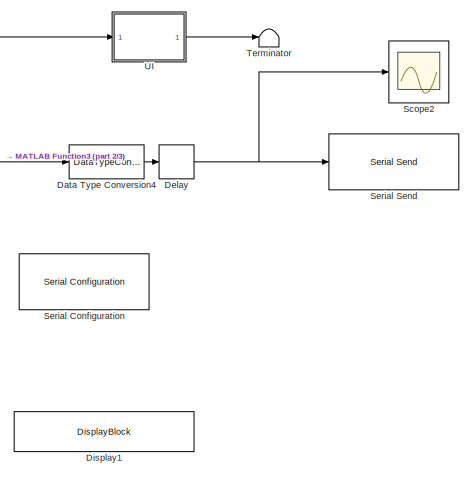
[diagram: root canvas - part 1/3, top right region]
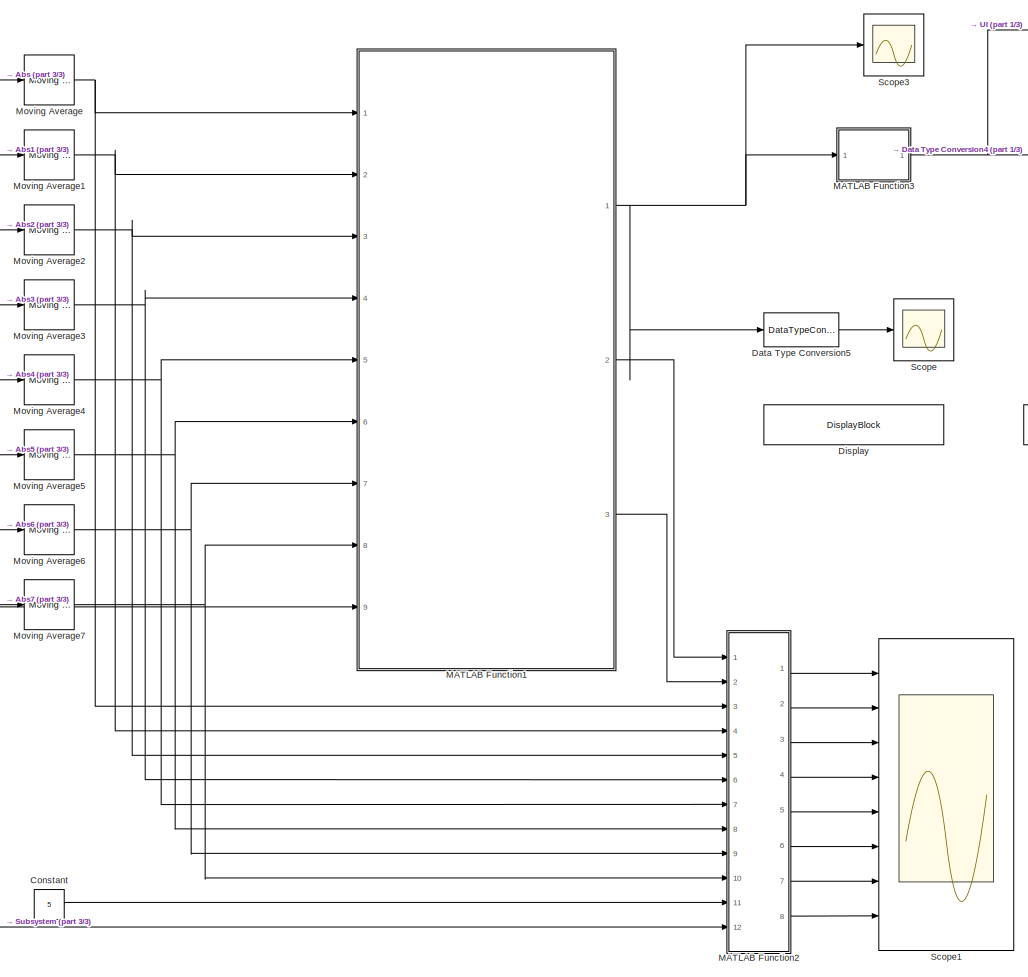
[diagram: root canvas - part 2/3, center side, full height]
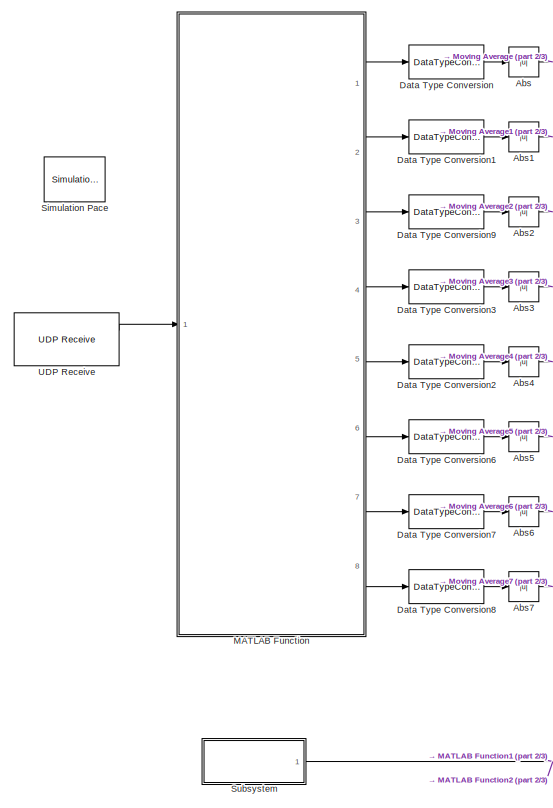
[diagram: root canvas - part 3/3, left side, full height]
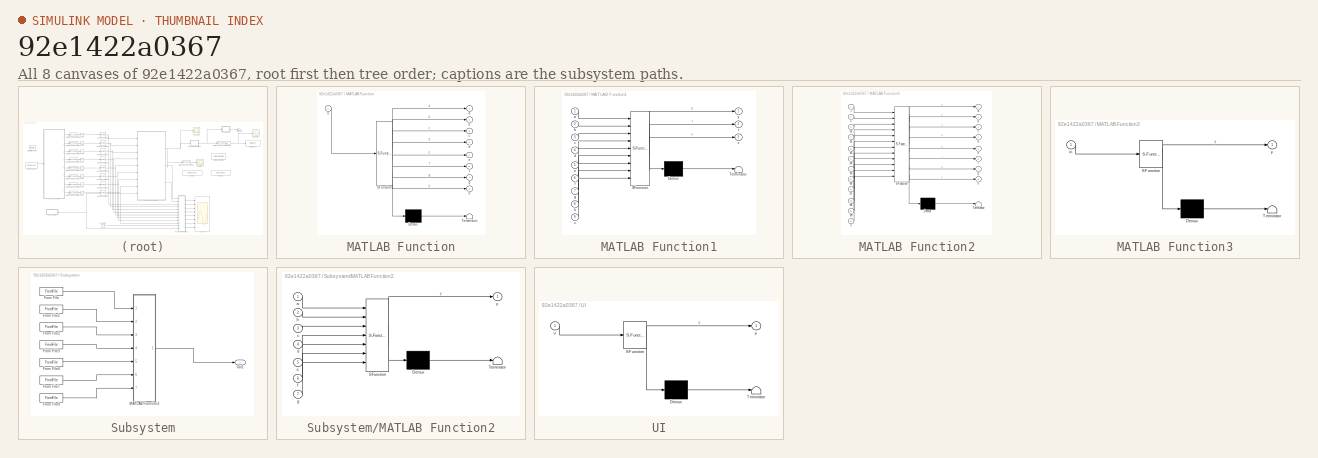
[diagram: thumbnail index - all 8 canvases of the model, root first then tree order]
MODEL slx_92e1422a0367
KIND model
CONFIG AbsTol = auto
CONFIG EnableMultiTasking = off
CONFIG FixedStep = auto
CONFIG MaxStep = auto
CONFIG MinStep = auto
CONFIG RelTol = 1e-3
CONFIG SampleTimeConstraint = Unconstrained
CONFIG Solver = VariableStepAuto
CONFIG SolverName = VariableStepAuto
CONFIG StartTime = 0.0
CONFIG StopTime = inf
BLOCK [Abs] Abs
  SaturateOnIntegerOverflow = off
BLOCK [Abs] Abs1
  SaturateOnIntegerOverflow = off
BLOCK [Abs] Abs2
  SaturateOnIntegerOverflow = off
BLOCK [Abs] Abs3
  SaturateOnIntegerOverflow = off
BLOCK [Abs] Abs4
  SaturateOnIntegerOverflow = off
BLOCK [Abs] Abs5
  SaturateOnIntegerOverflow = off
BLOCK [Abs] Abs6
  SaturateOnIntegerOverflow = off
BLOCK [Abs] Abs7
  SaturateOnIntegerOverflow = off
BLOCK [Constant] Constant
  Value = 5
BLOCK [DataTypeConversion] Data Type Conversion
  OutDataTypeStr = double
  RndMeth = Floor
  SaturateOnIntegerOverflow = off
BLOCK [DataTypeConversion] Data Type Conversion1
  OutDataTypeStr = double
  RndMeth = Floor
  SaturateOnIntegerOverflow = off
BLOCK [DataTypeConversion] Data Type Conversion2
  OutDataTypeStr = double
  RndMeth = Floor
  SaturateOnIntegerOverflow = off
BLOCK [DataTypeConversion] Data Type Conversion3
  OutDataTypeStr = double
  RndMeth = Floor
  SaturateOnIntegerOverflow = off
BLOCK [DataTypeConversion] Data Type Conversion4
  OutDataTypeStr = uint8
  RndMeth = Floor
  SaturateOnIntegerOverflow = off
BLOCK [DataTypeConversion] Data Type Conversion5
  OutDataTypeStr = double
  RndMeth = Floor
  SaturateOnIntegerOverflow = off
BLOCK [DataTypeConversion] Data Type Conversion6
  OutDataTypeStr = double
  RndMeth = Floor
  SaturateOnIntegerOverflow = off
BLOCK [DataTypeConversion] Data Type Conversion7
  OutDataTypeStr = double
  RndMeth = Floor
  SaturateOnIntegerOverflow = off
BLOCK [DataTypeConversion] Data Type Conversion8
  OutDataTypeStr = double
  RndMeth = Floor
  SaturateOnIntegerOverflow = off
BLOCK [DataTypeConversion] Data Type Conversion9
  OutDataTypeStr = double
  RndMeth = Floor
  SaturateOnIntegerOverflow = off
BLOCK [Delay] Delay
  DelayLength = 1
  InitialCondition = 0
  InputPortMap = u0
  Ports = [1, 1]
BLOCK [DisplayBlock] Display
  LabelPosition = Hide
  WebBlockId = 99
BLOCK [DisplayBlock] Display1
  LabelPosition = Hide
  WebBlockId = 154
BLOCK [SubSystem] MATLAB Function
  ErrorFcn = Stateflow.Translate.translate
  PermitHierarchicalResolution = ExplicitOnly
  Ports = [1, 8]
  RequestExecContextInheritance = off
  SFBlockType = MATLAB Function
  TreatAsAtomicUnit = on
BLOCK [Demux] MATLAB Function/ Demux 
  Outputs = 1
  Ports = [1, 1]
BLOCK [S-Function] MATLAB Function/ SFunction 
  EnableBusSupport = on
  FunctionName = sf_sfun
  PortCounts = [1 9]
  Ports = [1, 9]
  SFcnIsStateOwnerBlock = off
  SFunctionDeploymentMode = off
  Tag = Stateflow S-Function MyoGesture6CH_UI 2
BLOCK [Terminator] MATLAB Function/ Terminator 
BLOCK [Outport] MATLAB Function/a
  IconDisplay = Port number
BLOCK [Outport] MATLAB Function/b
  IconDisplay = Port number
  Port = 2
BLOCK [Outport] MATLAB Function/c
  IconDisplay = Port number
  Port = 3
BLOCK [Outport] MATLAB Function/d
  IconDisplay = Port number
  Port = 4
BLOCK [Outport] MATLAB Function/e
  IconDisplay = Port number
  Port = 5
BLOCK [Outport] MATLAB Function/f
  IconDisplay = Port number
  Port = 6
BLOCK [Outport] MATLAB Function/g
  IconDisplay = Port number
  Port = 7
BLOCK [Outport] MATLAB Function/h
  IconDisplay = Port number
  Port = 8
BLOCK [Inport] MATLAB Function/u
  IconDisplay = Port number
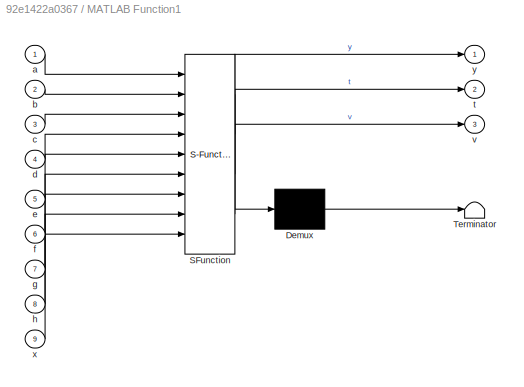
BLOCK [SubSystem] MATLAB Function1
  ErrorFcn = Stateflow.Translate.translate
  PermitHierarchicalResolution = ExplicitOnly
  Ports = [9, 3]
  RequestExecContextInheritance = off
  SFBlockType = MATLAB Function
  TreatAsAtomicUnit = on
BLOCK [Demux] MATLAB Function1/ Demux 
  Outputs = 1
  Ports = [1, 1]
BLOCK [S-Function] MATLAB Function1/ SFunction 
  EnableBusSupport = on
  FunctionName = sf_sfun
  PortCounts = [9 4]
  Ports = [9, 4]
  SFcnIsStateOwnerBlock = off
  SFunctionDeploymentMode = off
  Tag = Stateflow S-Function MyoGesture6CH_UI 1
BLOCK [Terminator] MATLAB Function1/ Terminator 
BLOCK [Inport] MATLAB Function1/a
  IconDisplay = Port number
BLOCK [Inport] MATLAB Function1/b
  IconDisplay = Port number
  Port = 2
BLOCK [Inport] MATLAB Function1/c
  IconDisplay = Port number
  Port = 3
BLOCK [Inport] MATLAB Function1/d
  IconDisplay = Port number
  Port = 4
BLOCK [Inport] MATLAB Function1/e
  IconDisplay = Port number
  Port = 5
BLOCK [Inport] MATLAB Function1/f
  IconDisplay = Port number
  Port = 6
BLOCK [Inport] MATLAB Function1/g
  IconDisplay = Port number
  Port = 7
BLOCK [Inport] MATLAB Function1/h
  IconDisplay = Port number
  Port = 8
BLOCK [Outport] MATLAB Function1/t
  IconDisplay = Port number
  Port = 2
BLOCK [Outport] MATLAB Function1/v
  IconDisplay = Port number
  Port = 3
BLOCK [Inport] MATLAB Function1/x
  IconDisplay = Port number
  Port = 9
BLOCK [Outport] MATLAB Function1/y
  IconDisplay = Port number
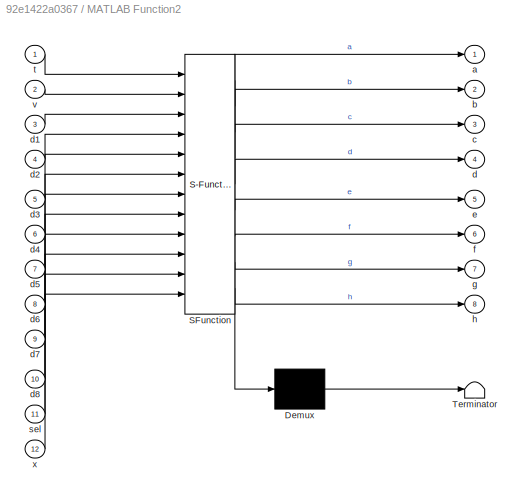
BLOCK [SubSystem] MATLAB Function2
  ErrorFcn = Stateflow.Translate.translate
  PermitHierarchicalResolution = ExplicitOnly
  Ports = [12, 8]
  RequestExecContextInheritance = off
  SFBlockType = MATLAB Function
  TreatAsAtomicUnit = on
BLOCK [Demux] MATLAB Function2/ Demux 
  Outputs = 1
  Ports = [1, 1]
BLOCK [S-Function] MATLAB Function2/ SFunction 
  EnableBusSupport = on
  FunctionName = sf_sfun
  PortCounts = [12 9]
  Ports = [12, 9]
  SFcnIsStateOwnerBlock = off
  SFunctionDeploymentMode = off
  Tag = Stateflow S-Function MyoGesture6CH_UI 3
BLOCK [Terminator] MATLAB Function2/ Terminator 
BLOCK [Outport] MATLAB Function2/a
  IconDisplay = Port number
BLOCK [Outport] MATLAB Function2/b
  IconDisplay = Port number
  Port = 2
BLOCK [Outport] MATLAB Function2/c
  IconDisplay = Port number
  Port = 3
BLOCK [Outport] MATLAB Function2/d
  IconDisplay = Port number
  Port = 4
BLOCK [Inport] MATLAB Function2/d1
  IconDisplay = Port number
  Port = 3
BLOCK [Inport] MATLAB Function2/d2
  IconDisplay = Port number
  Port = 4
BLOCK [Inport] MATLAB Function2/d3
  IconDisplay = Port number
  Port = 5
BLOCK [Inport] MATLAB Function2/d4
  IconDisplay = Port number
  Port = 6
BLOCK [Inport] MATLAB Function2/d5
  IconDisplay = Port number
  Port = 7
BLOCK [Inport] MATLAB Function2/d6
  IconDisplay = Port number
  Port = 8
BLOCK [Inport] MATLAB Function2/d7
  IconDisplay = Port number
  Port = 9
BLOCK [Inport] MATLAB Function2/d8
  IconDisplay = Port number
  Port = 10
BLOCK [Outport] MATLAB Function2/e
  IconDisplay = Port number
  Port = 5
BLOCK [Outport] MATLAB Function2/f
  IconDisplay = Port number
  Port = 6
BLOCK [Outport] MATLAB Function2/g
  IconDisplay = Port number
  Port = 7
BLOCK [Outport] MATLAB Function2/h
  IconDisplay = Port number
  Port = 8
BLOCK [Inport] MATLAB Function2/sel
  IconDisplay = Port number
  Port = 11
BLOCK [Inport] MATLAB Function2/t
  IconDisplay = Port number
BLOCK [Inport] MATLAB Function2/v
  IconDisplay = Port number
  Port = 2
BLOCK [Inport] MATLAB Function2/x
  IconDisplay = Port number
  Port = 12
BLOCK [SubSystem] MATLAB Function3
  ErrorFcn = Stateflow.Translate.translate
  PermitHierarchicalResolution = ExplicitOnly
  Ports = [1, 1]
  RequestExecContextInheritance = off
  SFBlockType = MATLAB Function
  TreatAsAtomicUnit = on
BLOCK [Demux] MATLAB Function3/ Demux 
  Outputs = 1
  Ports = [1, 1]
BLOCK [S-Function] MATLAB Function3/ SFunction 
  EnableBusSupport = on
  FunctionName = sf_sfun
  PortCounts = [1 2]
  Ports = [1, 2]
  SFcnIsStateOwnerBlock = off
  SFunctionDeploymentMode = off
  Tag = Stateflow S-Function MyoGesture6CH_UI 5
BLOCK [Terminator] MATLAB Function3/ Terminator 
BLOCK [Inport] MATLAB Function3/in
  IconDisplay = Port number
BLOCK [Outport] MATLAB Function3/y
  IconDisplay = Port number
BLOCK [Reference] Moving Average  REF=dspstat3/Moving
Average
  Ports = [1, 1]
  SourceBlock = dspstat3/Moving\nAverage
  SourceProductBaseCode = DS
  SourceProductName = DSP System Toolbox
  SourceType = dsp.simulink.MovingAverage
BLOCK [Reference] Moving Average1  REF=dspstat3/Moving
Average
  Ports = [1, 1]
  SourceBlock = dspstat3/Moving\nAverage
  SourceProductBaseCode = DS
  SourceProductName = DSP System Toolbox
  SourceType = dsp.simulink.MovingAverage
BLOCK [Reference] Moving Average2  REF=dspstat3/Moving
Average
  Ports = [1, 1]
  SourceBlock = dspstat3/Moving\nAverage
  SourceProductBaseCode = DS
  SourceProductName = DSP System Toolbox
  SourceType = dsp.simulink.MovingAverage
BLOCK [Reference] Moving Average3  REF=dspstat3/Moving
Average
  Ports = [1, 1]
  SourceBlock = dspstat3/Moving\nAverage
  SourceProductBaseCode = DS
  SourceProductName = DSP System Toolbox
  SourceType = dsp.simulink.MovingAverage
BLOCK [Reference] Moving Average4  REF=dspstat3/Moving
Average
  Ports = [1, 1]
  SourceBlock = dspstat3/Moving\nAverage
  SourceProductBaseCode = DS
  SourceProductName = DSP System Toolbox
  SourceType = dsp.simulink.MovingAverage
BLOCK [Reference] Moving Average5  REF=dspstat3/Moving
Average
  Ports = [1, 1]
  SourceBlock = dspstat3/Moving\nAverage
  SourceProductBaseCode = DS
  SourceProductName = DSP System Toolbox
  SourceType = dsp.simulink.MovingAverage
BLOCK [Reference] Moving Average6  REF=dspstat3/Moving
Average
  Ports = [1, 1]
  SourceBlock = dspstat3/Moving\nAverage
  SourceProductBaseCode = DS
  SourceProductName = DSP System Toolbox
  SourceType = dsp.simulink.MovingAverage
BLOCK [Reference] Moving Average7  REF=dspstat3/Moving
Average
  Ports = [1, 1]
  SourceBlock = dspstat3/Moving\nAverage
  SourceProductBaseCode = DS
  SourceProductName = DSP System Toolbox
  SourceType = dsp.simulink.MovingAverage
BLOCK [Scope] Scope
  Floating = off
  NumInputPorts = 1
  Ports = [1]
  ScopeSpecificationString = Simulink.scopes.TimeScopeBlockCfg('CurrentConfiguration', extmgr.ConfigurationSet(extmgr.Configuration('Core','General UI',true),extmgr.Configuration('Core','Source UI',true),extmgr.Configuration('Sources','WiredSimulink',true,'DataLoggingVariableName','ScopeData1'),extmgr.Configuration('Visuals','Time Domain',true,'SerializedDisplays',{struct('MinYLimReal','-0.75','MaxYLimReal','6.75','YLabelReal...<+1434ch>
BLOCK [Scope] Scope1
  Floating = off
  NumInputPorts = 8
  Ports = [8]
  ScopeSpecificationString = Simulink.scopes.TimeScopeBlockCfg('CurrentConfiguration', extmgr.ConfigurationSet(extmgr.Configuration('Core','General UI',true),extmgr.Configuration('Core','Source UI',true),extmgr.Configuration('Sources','WiredSimulink',true,'DataLoggingVariableName','ScopeData1'),extmgr.Configuration('Visuals','Time Domain',true,'SerializedDisplays',{struct('MinYLimReal','0','MaxYLimReal','100','YLabelReal','',...<+7550ch>
BLOCK [Scope] Scope2
  Floating = off
  NumInputPorts = 1
  Ports = [1]
  ScopeSpecificationString = Simulink.scopes.TimeScopeBlockCfg('CurrentConfiguration', extmgr.ConfigurationSet(extmgr.Configuration('Core','General UI',true),extmgr.Configuration('Core','Source UI',true),extmgr.Configuration('Sources','WiredSimulink',true,'DataLoggingVariableName','ScopeData1'),extmgr.Configuration('Visuals','Time Domain',true,'SerializedDisplays',{struct('MinYLimReal','-1.00000','MaxYLimReal','1.00000','YLab...<+1422ch>
BLOCK [Scope] Scope3
  Floating = off
  NumInputPorts = 1
  Ports = [1]
  ScopeSpecificationString = Simulink.scopes.TimeScopeBlockCfg('CurrentConfiguration', extmgr.ConfigurationSet(extmgr.Configuration('Core','General UI',true),extmgr.Configuration('Core','Source UI',true),extmgr.Configuration('Sources','WiredSimulink',true,'DataLoggingVariableName','ScopeData1'),extmgr.Configuration('Visuals','Time Domain',true,'SerializedDisplays',{struct('MinYLimReal','-0.75','MaxYLimReal','6.75','YLabelReal...<+1417ch>
BLOCK [Reference] Serial Configuration  REF=instrumentlib/Serial Configuration
  Ports = []
  Priority = -200000
  SourceBlock = instrumentlib/Serial Configuration
  SourceProductBaseCode = IC
  SourceProductName = Instrument Control Toolbox
  SourceType = Serial Configuration
BLOCK [Reference] Serial Send  REF=instrumentlib/Serial Send
  Ports = [1]
  SourceBlock = instrumentlib/Serial Send
  SourceProductBaseCode = IC
  SourceProductName = Instrument Control Toolbox
  SourceType = Serial Send
BLOCK [Reference] Simulation Pace  REF=aerolibanimutils/Simulation Pace
  AttributesFormatString = %<SleepMode>\n%<SimulationPace> sec/sec
  Ports = []
  SourceBlock = aerolibanimutils/Simulation Pace
  SourceProductBaseCode = AE
  SourceProductName = Aerospace Blockset
  SourceType = Simulation Pace
BLOCK [SubSystem] Subsystem
  Ports = [0, 1]
  RequestExecContextInheritance = off
BLOCK [FromFile] Subsystem/From File
  ExtrapolationAfterLastDataPoint = Hold last value
  ExtrapolationBeforeFirstDataPoint = Hold first value
  FileName = fist.mat
  InterpolationWithinTimeRange = Zero order hold
  OutDataTypeStr = double
  SampleTime = 0
  ZeroCross = on
BLOCK [FromFile] Subsystem/From File1
  ExtrapolationAfterLastDataPoint = Hold last value
  ExtrapolationBeforeFirstDataPoint = Hold first value
  FileName = spread.mat
  InterpolationWithinTimeRange = Zero order hold
  OutDataTypeStr = double
  SampleTime = 0
  ZeroCross = on
BLOCK [FromFile] Subsystem/From File2
  ExtrapolationAfterLastDataPoint = Hold last value
  ExtrapolationBeforeFirstDataPoint = Hold first value
  FileName = left.mat
  InterpolationWithinTimeRange = Zero order hold
  OutDataTypeStr = double
  SampleTime = 0
  ZeroCross = on
BLOCK [FromFile] Subsystem/From File3
  ExtrapolationAfterLastDataPoint = Hold last value
  ExtrapolationBeforeFirstDataPoint = Hold first value
  FileName = right.mat
  InterpolationWithinTimeRange = Zero order hold
  OutDataTypeStr = double
  SampleTime = 0
  ZeroCross = on
BLOCK [FromFile] Subsystem/From File4
  ExtrapolationAfterLastDataPoint = Hold last value
  ExtrapolationBeforeFirstDataPoint = Hold first value
  FileName = rest.mat
  InterpolationWithinTimeRange = Zero order hold
  OutDataTypeStr = double
  SampleTime = 0
  ZeroCross = on
BLOCK [FromFile] Subsystem/From File6
  ExtrapolationAfterLastDataPoint = Hold last value
  ExtrapolationBeforeFirstDataPoint = Hold first value
  FileName = banana.mat
  InterpolationWithinTimeRange = Zero order hold
  OutDataTypeStr = double
  SampleTime = 0
  ZeroCross = on
BLOCK [FromFile] Subsystem/From File7
  ExtrapolationAfterLastDataPoint = Hold last value
  ExtrapolationBeforeFirstDataPoint = Hold first value
  FileName = fish.mat
  InterpolationWithinTimeRange = Zero order hold
  OutDataTypeStr = double
  SampleTime = 0
  ZeroCross = on
BLOCK [SubSystem] Subsystem/MATLAB Function2
  ErrorFcn = Stateflow.Translate.translate
  PermitHierarchicalResolution = ExplicitOnly
  Ports = [7, 1]
  RequestExecContextInheritance = off
  SFBlockType = MATLAB Function
  TreatAsAtomicUnit = on
BLOCK [Demux] Subsystem/MATLAB Function2/ Demux 
  Outputs = 1
  Ports = [1, 1]
BLOCK [S-Function] Subsystem/MATLAB Function2/ SFunction 
  EnableBusSupport = on
  FunctionName = sf_sfun
  PortCounts = [7 2]
  Ports = [7, 2]
  SFcnIsStateOwnerBlock = off
  SFunctionDeploymentMode = off
  Tag = Stateflow S-Function MyoGesture6CH_UI 4
BLOCK [Terminator] Subsystem/MATLAB Function2/ Terminator 
BLOCK [Inport] Subsystem/MATLAB Function2/a
  IconDisplay = Port number
BLOCK [Inport] Subsystem/MATLAB Function2/b
  IconDisplay = Port number
  Port = 2
BLOCK [Inport] Subsystem/MATLAB Function2/c
  IconDisplay = Port number
  Port = 3
BLOCK [Inport] Subsystem/MATLAB Function2/d
  IconDisplay = Port number
  Port = 4
BLOCK [Inport] Subsystem/MATLAB Function2/e
  IconDisplay = Port number
  Port = 5
BLOCK [Inport] Subsystem/MATLAB Function2/f
  IconDisplay = Port number
  Port = 6
BLOCK [Inport] Subsystem/MATLAB Function2/g
  IconDisplay = Port number
  Port = 7
BLOCK [Outport] Subsystem/MATLAB Function2/y
  IconDisplay = Port number
BLOCK [Outport] Subsystem/Out1
  IconDisplay = Port number
BLOCK [Terminator] Terminator
BLOCK [Reference] UDP Receive  REF=dspnetwork/UDP Receive
  Ports = [0, 2]
  SourceBlock = dspnetwork/UDP Receive
  SourceProductBaseCode = DS
  SourceProductName = DSP System Toolbox
  SourceType = UDP Receive
BLOCK [SubSystem] UI
  ErrorFcn = Stateflow.Translate.translate
  PermitHierarchicalResolution = ExplicitOnly
  Ports = [1, 1]
  RequestExecContextInheritance = off
  SFBlockType = MATLAB Function
  Tag = rand
  TreatAsAtomicUnit = on
BLOCK [Demux] UI/ Demux 
  Outputs = 1
  Ports = [1, 1]
BLOCK [S-Function] UI/ SFunction 
  EnableBusSupport = on
  FunctionName = sf_sfun
  PortCounts = [1 2]
  Ports = [1, 2]
  SFcnIsStateOwnerBlock = off
  SFunctionDeploymentMode = off
  Tag = Stateflow S-Function MyoGesture6CH_UI 6
BLOCK [Terminator] UI/ Terminator 
BLOCK [Inport] UI/u
  IconDisplay = Port number
BLOCK [Outport] UI/y
  IconDisplay = Port number
LINE Abs1:1 -> Moving Average1:1
LINE Abs2:1 -> Moving Average2:1
LINE Abs3:1 -> Moving Average3:1
LINE Abs4:1 -> Moving Average4:1
LINE Abs5:1 -> Moving Average5:1
LINE Abs6:1 -> Moving Average6:1
LINE Abs7:1 -> Moving Average7:1
LINE Abs:1 -> Moving Average:1
LINE Constant:1 -> MATLAB Function2:11
LINE Data Type Conversion1:1 -> Abs1:1
LINE Data Type Conversion2:1 -> Abs4:1
LINE Data Type Conversion3:1 -> Abs3:1
LINE Data Type Conversion4:1 -> Delay:1
LINE Data Type Conversion5:1 -> Scope:1
LINE Data Type Conversion6:1 -> Abs5:1
LINE Data Type Conversion7:1 -> Abs6:1
LINE Data Type Conversion8:1 -> Abs7:1
LINE Data Type Conversion9:1 -> Abs2:1
LINE Data Type Conversion:1 -> Abs:1
NET Delay:1 -> Scope2:1, Serial Send:1
NET MATLAB Function1:1 -> Data Type Conversion5:1, MATLAB Function3:1, Scope3:1
LINE MATLAB Function1:2 -> MATLAB Function2:1
LINE MATLAB Function1:3 -> MATLAB Function2:2
LINE MATLAB Function2:1 -> Scope1:1
LINE MATLAB Function2:2 -> Scope1:2
LINE MATLAB Function2:3 -> Scope1:3
LINE MATLAB Function2:4 -> Scope1:4
LINE MATLAB Function2:5 -> Scope1:5
LINE MATLAB Function2:6 -> Scope1:6
LINE MATLAB Function2:7 -> Scope1:7
LINE MATLAB Function2:8 -> Scope1:8
NET MATLAB Function3:1 -> Data Type Conversion4:1, UI:1
LINE MATLAB Function:1 -> Data Type Conversion:1
LINE MATLAB Function:2 -> Data Type Conversion1:1
LINE MATLAB Function:3 -> Data Type Conversion9:1
LINE MATLAB Function:4 -> Data Type Conversion3:1
LINE MATLAB Function:5 -> Data Type Conversion2:1
LINE MATLAB Function:6 -> Data Type Conversion6:1
LINE MATLAB Function:7 -> Data Type Conversion7:1
LINE MATLAB Function:8 -> Data Type Conversion8:1
NET Moving Average1:1 -> MATLAB Function1:2, MATLAB Function2:4
NET Moving Average2:1 -> MATLAB Function1:3, MATLAB Function2:5
NET Moving Average3:1 -> MATLAB Function1:4, MATLAB Function2:6
NET Moving Average4:1 -> MATLAB Function1:5, MATLAB Function2:7
NET Moving Average5:1 -> MATLAB Function1:6, MATLAB Function2:8
NET Moving Average6:1 -> MATLAB Function1:7, MATLAB Function2:9
NET Moving Average7:1 -> MATLAB Function1:8, MATLAB Function2:10
NET Moving Average:1 -> MATLAB Function1:1, MATLAB Function2:3
LINE Subsystem/From File1:1 -> Subsystem/MATLAB Function2:2
LINE Subsystem/From File2:1 -> Subsystem/MATLAB Function2:3
LINE Subsystem/From File3:1 -> Subsystem/MATLAB Function2:4
LINE Subsystem/From File4:1 -> Subsystem/MATLAB Function2:7
LINE Subsystem/From File6:1 -> Subsystem/MATLAB Function2:5
LINE Subsystem/From File7:1 -> Subsystem/MATLAB Function2:6
LINE Subsystem/From File:1 -> Subsystem/MATLAB Function2:1
LINE Subsystem/MATLAB Function2:1 -> Subsystem/Out1:1
NET Subsystem:1 -> MATLAB Function1:9, MATLAB Function2:12
LINE UDP Receive:1 -> MATLAB Function:1
LINE UI:1 -> Terminator:1
note: NET lines group one-source signal fan-out (src -> all destinations, sorted); 1:1 wires keep LINE
CHART MATLAB Function1 states=1 transitions=1
  STATE_LABEL 'eML_blk_kernel()'
  STATE_LABEL 'SCRIPT:\nfunction [y,t,v] = fcn(a,b,c,d,e,f,g,h,x)\n\n%Percentage\nt = 1.5; %top\nv = 0.6; %bot\n\n%constant\nn = 1;  %top\nm = 0;  %bot\n\n    if a<x(1,7)*t+n & a>x(2,7)*v-m & b<x(3,7)*t+n & b>x(4,7)*v-m & c<x(5,7)*t+n & c>x(6,7)*v-m & d<x(7,7)*t+n & d>x(8,7)*v-m & e<x(9,7)*t+n & e>x(10,7)*v-m & f<x(11,7)*t+n & f>x(12,7)*v-m & g<x(13,7)*t+n & g>x(14,7)*v-m & h<x(15,7)*t+n & h>x(16,7)*v-m \n        y=0;\n    e...<+3608ch>'
CHART MATLAB Function states=1 transitions=1
  STATE_LABEL 'eML_blk_kernel()'
  STATE_LABEL 'SCRIPT:\n%a is the output of this block, and fcn(u) is the input required\nfunction [a,b,c,d,e,f,g,h]  = fcn(u)\n        \n%Below the output a is specified as the 3 row of the 8x1 input vector u\na = u(1,:);\nb = u(2,:);\nc = u(3,:);\nd = u(4,:);\ne = u(5,:);\nf = u(6,:);\ng = u(7,:);\nh = u(8,:);\n\n\n'
CHART MATLAB Function2 states=1 transitions=1
  STATE_LABEL 'eML_blk_kernel()'
  STATE_LABEL 'SCRIPT:\nfunction [a,b,c,d,e,f,g,h] = fcn(t, v, d1, d2, d3, d4, d5, d6, d7, d8, sel, x)\n    \n    a=[x(1,sel)*t*t,x(2,sel)*v,d1]\n    b=[x(3,sel)*t,x(4,sel)*v,d2]\n    c=[x(5,sel)*t,x(6,sel)*v,d3]\n    d=[x(7,sel)*t,x(8,sel)*v,d4]\n    e=[x(9,sel)*t,x(10,sel)*v,d5]\n    f=[x(11,sel)*t,x(12,sel)*v,d6]\n    g=[x(13,sel)*t,x(14,sel)*v,d7]\n    h=[x(15,sel)*t,x(16,sel)*v,d8]\n    \n'
CHART Subsystem/MATLAB Function2 states=1 transitions=1
  STATE_LABEL 'eML_blk_kernel()'
  STATE_LABEL 'SCRIPT:\nfunction y = fcn(a, b, c, d, e, f, g)\n\ny=[a b c d e f g];\n'
CHART MATLAB Function3 states=1 transitions=1
  STATE_LABEL 'eML_blk_kernel()'
  STATE_LABEL 'SCRIPT:\nfunction y = fcn(in)\n\npersistent A;\nif isempty(A)\n    A=zeros(1,150);\nend\n\nif in==0\n    A=zeros(1,150);\nend\n\n    A=circshift(A,1);\n    A(1)=in;   \n    M = mode(A)\n\ny = M;\n'
CHART UI states=1 transitions=1
  STATE_LABEL 'eML_blk_kernel()'
  STATE_LABEL "SCRIPT:\nfunction y = fcn(u)\ncoder.extrinsic('uicontrol');\ncoder.extrinsic('uipanel');\n\npersistent h1 h5 h6 prev jointUp jointDown selected; \n% persistent h1 h5 prev;\n\nif isempty(prev)\n    prev=0;\nend\n\nif isempty(jointUp)\n    jointUp=0;\n    jointDown=0;\n    selected=1;\nend\n\nif isempty(h1) \n     close all;\n     h1 = figure(...\n    'PaperUnits','inches',...\n    'Units','characters',...\n    'Position'...<+3608ch>"
